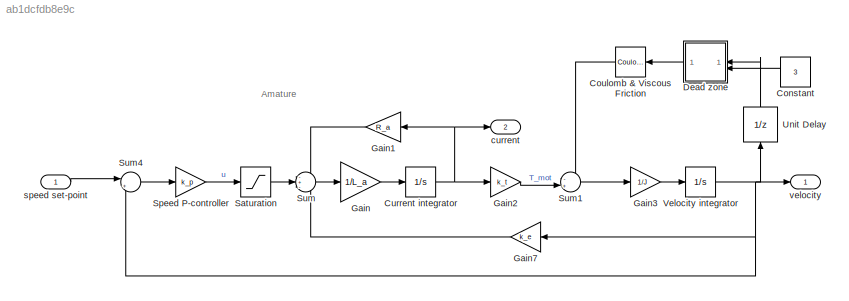
MODEL slx_ab1dcfdb8e9c
KIND model
CONFIG AbsTol = auto
CONFIG EnableMultiTasking = off
CONFIG FixedStep = auto
CONFIG MaxStep = 15e-3
CONFIG MinStep = auto
CONFIG RelTol = 1e-3
CONFIG SampleTimeConstraint = Unconstrained
CONFIG SolverName = VariableStepAuto
CONFIG StartTime = 0.0
CONFIG StopTime = 10.0
WORKSPACE source: mxarray member
WORKSPACE J = 7.1e-06
WORKSPACE L_a = 0.0089
WORKSPACE R_a = 5.95
WORKSPACE T_0 = 0.001
WORKSPACE b = 0.001
WORKSPACE k_e = 0.0514
WORKSPACE k_p = 2
WORKSPACE k_t = 0.0514
BLOCK [Constant] Constant
  NameLocation = top
  Value = 3
BLOCK [Reference] Coulomb & Viscous Friction  REF=simulink/Discontinuities/Coulomb &
Viscous Friction
  SourceBlock = simulink/Discontinuities/Coulomb &\nViscous Friction
  SourceType = Coulombic and Viscous Friction
BLOCK [Integrator] Current integrator
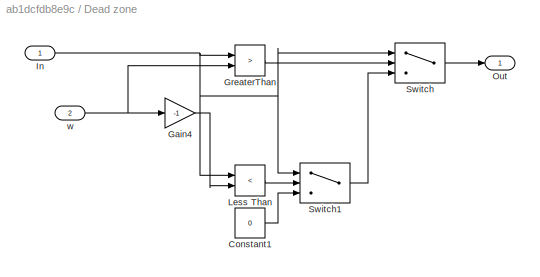
BLOCK [SubSystem] Dead zone
BLOCK [Constant] Dead zone/Constant1
  Value = 0
BLOCK [Gain] Dead zone/Gain4
  Gain = -1
BLOCK [RelationalOperator] Dead zone/GreaterThan
  InputSameDT = off
  Operator = >
  OutDataTypeStr = boolean
  RndMeth = Simplest
BLOCK [Inport] Dead zone/In
BLOCK [RelationalOperator] Dead zone/Less Than
  InputSameDT = off
  Operator = <
  OutDataTypeStr = boolean
  RndMeth = Simplest
BLOCK [Outport] Dead zone/Out
BLOCK [Switch] Dead zone/Switch
  Criteria = u2 ~= 0
  InputSameDT = off
  SaturateOnIntegerOverflow = off
BLOCK [Switch] Dead zone/Switch1
  Criteria = u2 ~= 0
  InputSameDT = off
  SaturateOnIntegerOverflow = off
BLOCK [Inport] Dead zone/w
  Port = 2
BLOCK [Gain] Gain
  Gain = 1/L_a
BLOCK [Gain] Gain1
  Gain = R_a
  NameLocation = top
BLOCK [Gain] Gain2
  Gain = k_t
BLOCK [Gain] Gain3
  Gain = 1/J
BLOCK [Gain] Gain7
  Gain = k_e
  NameLocation = top
BLOCK [Saturate] Saturation
  LowerLimit = -24
  UpperLimit = 24
BLOCK [Gain] Speed P-controller
  Gain = k_p
BLOCK [Sum] Sum
  Inputs = -+-
BLOCK [Sum] Sum1
  Inputs = -+|
BLOCK [Sum] Sum4
  Inputs = |+-
BLOCK [UnitDelay] Unit Delay
  HasFrameUpgradeWarning = on
  NameLocation = right
  SampleTime = -1
BLOCK [Integrator] Velocity integrator
BLOCK [Outport] current
  Port = 2
BLOCK [Inport] speed set-point
BLOCK [Outport] velocity
ANNOTATION (root): Amature
LINE Constant:1 -> Dead zone:2
LINE Coulomb & Viscous Friction:1 -> Sum1:1
NET Current integrator:1 -> Gain1:1, Gain2:1, current:1
LINE Dead zone/Constant1:1 -> Dead zone/Switch1:3
LINE Dead zone/Gain4:1 -> Dead zone/Less Than:2
LINE Dead zone/GreaterThan:1 -> Dead zone/Switch:2
NET Dead zone/In:1 -> Dead zone/GreaterThan:1, Dead zone/Less Than:1, Dead zone/Switch1:1, Dead zone/Switch:1
LINE Dead zone/Less Than:1 -> Dead zone/Switch1:2
LINE Dead zone/Switch1:1 -> Dead zone/Switch:3
LINE Dead zone/Switch:1 -> Dead zone/Out:1
NET Dead zone/w:1 -> Dead zone/Gain4:1, Dead zone/GreaterThan:2
LINE Dead zone:1 -> Coulomb & Viscous Friction:1
LINE Gain1:1 -> Sum:1
LINE Gain2:1 -> Sum1:2
LINE Gain3:1 -> Velocity integrator:1
LINE Gain7:1 -> Sum:3
LINE Gain:1 -> Current integrator:1
LINE Saturation:1 -> Sum:2
LINE Speed P-controller:1 -> Saturation:1
LINE Sum1:1 -> Gain3:1
LINE Sum4:1 -> Speed P-controller:1
LINE Sum:1 -> Gain:1
LINE Unit Delay:1 -> Dead zone:1
NET Velocity integrator:1 -> Gain7:1, Sum4:2, Unit Delay:1, velocity:1
LINE speed set-point:1 -> Sum4:1
note: NET lines group one-source signal fan-out (src -> all destinations, sorted); 1:1 wires keep LINE
